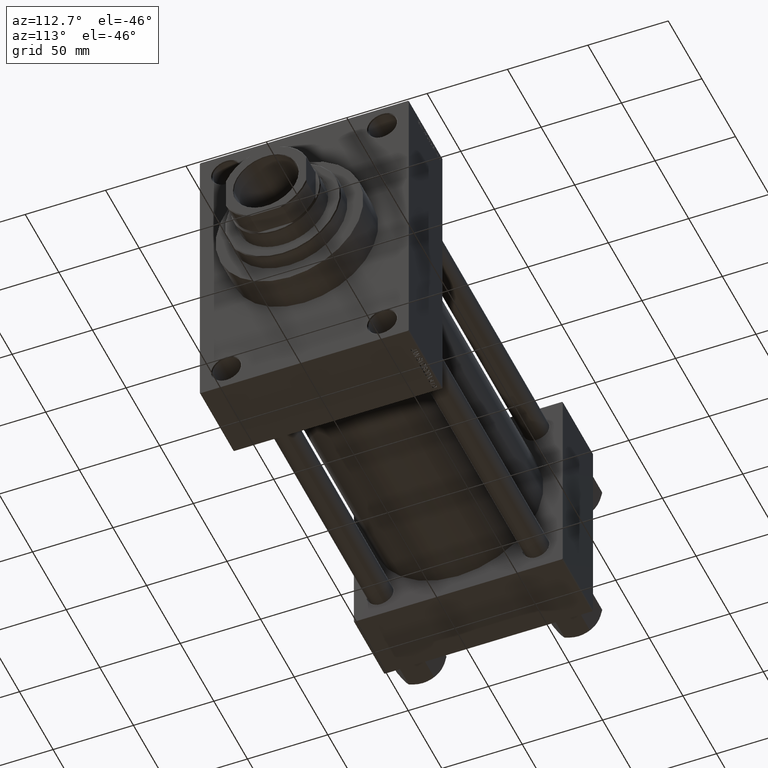
[diagram: clean part render]
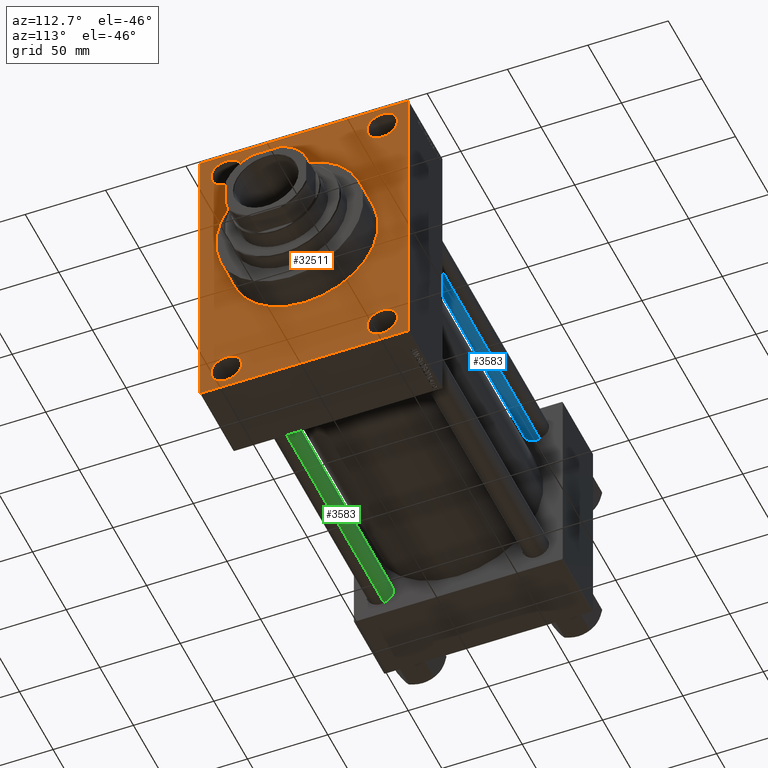
[diagram: same view with three faces highlighted in distinct colors, each labeled with its STEP entity id]
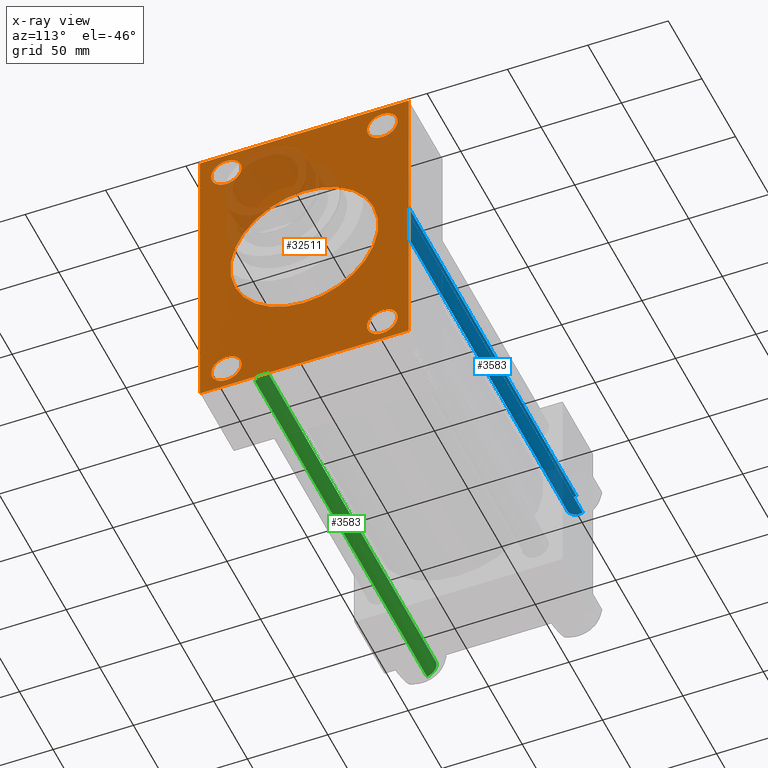
[diagram: x-ray of the same camera — body ghosted, the three highlighted faces saturated]
A machine part, auxiliary view with three faces highlighted in distinct colors.
The next image is the same camera in x-ray (body ghosted, the three faces saturated) — at least one of them is partly hidden behind the body in this view.
Their STEP definitions:

[orange] entity #32511 — the highlighted planar face has unit normal (-1, 0, 0).
#144 = ORIENTED_EDGE ( 'NONE', *, *, #44293, .F. ) ;
#557 = AXIS2_PLACEMENT_3D ( 'NONE', #2115, #13200, #8640 ) ;
#703 = EDGE_LOOP ( 'NONE', ( #9388, #16778, #5173, #28560, #43272, #26817, #36549, #38433 ) ) ;
#956 = DIRECTION ( 'NONE',  ( -1.000000000000000000, 0.000000000000000000, -0.000000000000000000 ) ) ;
#1347 = EDGE_CURVE ( 'NONE', #27374, #19081, #37260, .T. ) ;
#1544 = CARTESIAN_POINT ( 'NONE',  ( 273.9999999999999432, 64.49999999999987210, -95.00000000000001421 ) ) ;
#1857 = CARTESIAN_POINT ( 'NONE',  ( 273.9999999999999432, 64.99999999999997158, 94.49999999999997158 ) ) ;
#2115 = CARTESIAN_POINT ( 'NONE',  ( 273.9999999999999432, 0.000000000000000000, 0.000000000000000000 ) ) ;
#2542 = DIRECTION ( 'NONE',  ( 0.000000000000000000, 0.000000000000000000, 1.000000000000000000 ) ) ;
#2699 = EDGE_CURVE ( 'NONE', #31246, #31264, #8261, .T. ) ;
#3089 = DIRECTION ( 'NONE',  ( 0.000000000000000000, -1.000000000000000000, -1.067522139062650425E-16 ) ) ;
#3331 = CARTESIAN_POINT ( 'NONE',  ( 273.9999999999999432, 64.99999999999998579, -94.49999999999997158 ) ) ;
#3956 = CARTESIAN_POINT ( 'NONE',  ( 273.9999999999999432, 64.99999999999998579, -94.49999999999997158 ) ) ;
#4267 = DIRECTION ( 'NONE',  ( -1.000000000000000000, 0.000000000000000000, -0.000000000000000000 ) ) ;
#5173 = ORIENTED_EDGE ( 'NONE', *, *, #7094, .F. ) ;
#5285 = LINE ( 'NONE', #36157, #24713 ) ;
#5762 = VECTOR ( 'NONE', #24353, 1000.000000000000000 ) ;
#5979 = FACE_OUTER_BOUND ( 'NONE', #703, .T. ) ;
#5999 = DIRECTION ( 'NONE',  ( -1.000000000000000000, 0.000000000000000000, -0.000000000000000000 ) ) ;
#6578 = LINE ( 'NONE', #21520, #29522 ) ;
#6760 = VECTOR ( 'NONE', #44746, 1000.000000000000114 ) ;
#7094 = EDGE_CURVE ( 'NONE', #44386, #34753, #18739, .T. ) ;
#7144 = EDGE_LOOP ( 'NONE', ( #32690, #24344 ) ) ;
#7287 = DIRECTION ( 'NONE',  ( -1.000000000000000000, 0.000000000000000000, -0.000000000000000000 ) ) ;
#7382 = AXIS2_PLACEMENT_3D ( 'NONE', #9535, #39002, #2542 ) ;
#7549 = DIRECTION ( 'NONE',  ( 1.000000000000000000, 0.000000000000000000, 0.000000000000000000 ) ) ;
#8106 = DIRECTION ( 'NONE',  ( 0.000000000000000000, 0.000000000000000000, 1.000000000000000000 ) ) ;
#8261 = LINE ( 'NONE', #12352, #14907 ) ;
#8325 = CARTESIAN_POINT ( 'NONE',  ( 273.9999999999999432, -48.49999999999999289, -71.50000000000005684 ) ) ;
#8512 = VERTEX_POINT ( 'NONE', #22788 ) ;
#8640 = DIRECTION ( 'NONE',  ( -0.000000000000000000, 0.000000000000000000, 1.000000000000000000 ) ) ;
#8875 = FACE_BOUND ( 'NONE', #10533, .T. ) ;
#9388 = ORIENTED_EDGE ( 'NONE', *, *, #2699, .T. ) ;
#9535 = CARTESIAN_POINT ( 'NONE',  ( 273.9999999999999432, -48.50000000000000000, 81.00000000000000000 ) ) ;
#10426 = DIRECTION ( 'NONE',  ( 0.000000000000000000, 0.7071067811865867636, -0.7071067811865081598 ) ) ;
#10497 = AXIS2_PLACEMENT_3D ( 'NONE', #41185, #4267, #8106 ) ;
#10533 = EDGE_LOOP ( 'NONE', ( #144, #39896 ) ) ;
#11745 = EDGE_CURVE ( 'NONE', #24526, #19825, #26002, .T. ) ;
#11886 = EDGE_CURVE ( 'NONE', #36154, #44032, #14263, .T. ) ;
#12352 = CARTESIAN_POINT ( 'NONE',  ( 273.9999999999999432, -65.00000000000001421, 94.99999999999997158 ) ) ;
#12876 = CARTESIAN_POINT ( 'NONE',  ( 273.9999999999999432, -48.50000000000000000, 71.50000000000009948 ) ) ;
#12878 = VERTEX_POINT ( 'NONE', #43209 ) ;
#12972 = AXIS2_PLACEMENT_3D ( 'NONE', #18473, #26200, #14618 ) ;
#13028 = AXIS2_PLACEMENT_3D ( 'NONE', #20099, #31010, #38017 ) ;
#13200 = DIRECTION ( 'NONE',  ( -1.000000000000000000, 0.000000000000000000, -0.000000000000000000 ) ) ;
#13684 = DIRECTION ( 'NONE',  ( 0.000000000000000000, -1.000000000000000000, 0.000000000000000000 ) ) ;
#13700 = CARTESIAN_POINT ( 'NONE',  ( 273.9999999999999432, -48.49999999999999289, -81.00000000000001421 ) ) ;
#13895 = CARTESIAN_POINT ( 'NONE',  ( 273.9999999999999432, -65.00000000000001421, 94.49999999999991473 ) ) ;
#14043 = EDGE_CURVE ( 'NONE', #44032, #32825, #5285, .T. ) ;
#14144 = VERTEX_POINT ( 'NONE', #18501 ) ;
#14263 = LINE ( 'NONE', #21014, #27552 ) ;
#14618 = DIRECTION ( 'NONE',  ( 0.000000000000000000, 0.000000000000000000, 1.000000000000000000 ) ) ;
#14741 = CARTESIAN_POINT ( 'NONE',  ( 273.9999999999999432, 48.50000000000000711, 90.49999999999990052 ) ) ;
#14907 = VECTOR ( 'NONE', #27083, 1000.000000000000000 ) ;
#15183 = VECTOR ( 'NONE', #32512, 1000.000000000000114 ) ;
#15529 = DIRECTION ( 'NONE',  ( 0.000000000000000000, 0.000000000000000000, 1.000000000000000000 ) ) ;
#15991 = CARTESIAN_POINT ( 'NONE',  ( 273.9999999999999432, 48.50000000000000711, -81.00000000000001421 ) ) ;
#16195 = VERTEX_POINT ( 'NONE', #38075 ) ;
#16331 = CARTESIAN_POINT ( 'NONE',  ( 273.9999999999999432, 48.50000000000000711, -81.00000000000001421 ) ) ;
#16382 = EDGE_LOOP ( 'NONE', ( #39865, #25219 ) ) ;
#16392 = AXIS2_PLACEMENT_3D ( 'NONE', #37224, #7287, #40600 ) ;
#16778 = ORIENTED_EDGE ( 'NONE', *, *, #19086, .T. ) ;
#17047 = DIRECTION ( 'NONE',  ( 0.000000000000000000, 0.000000000000000000, 1.000000000000000000 ) ) ;
#17212 = EDGE_CURVE ( 'NONE', #8512, #16195, #34081, .T. ) ;
#17939 = ORIENTED_EDGE ( 'NONE', *, *, #36321, .T. ) ;
#18473 = CARTESIAN_POINT ( 'NONE',  ( 273.9999999999999432, -48.49999999999999289, -81.00000000000001421 ) ) ;
#18501 = CARTESIAN_POINT ( 'NONE',  ( 273.9999999999999432, 48.50000000000000711, 71.50000000000009948 ) ) ;
#18739 = LINE ( 'NONE', #32791, #36677 ) ;
#18975 = CIRCLE ( 'NONE', #42910, 46.00000000000000000 ) ;
#19081 = VERTEX_POINT ( 'NONE', #28792 ) ;
#19086 = EDGE_CURVE ( 'NONE', #31264, #34753, #6578, .T. ) ;
#19242 = EDGE_CURVE ( 'NONE', #14144, #41379, #24116, .T. ) ;
#19376 = DIRECTION ( 'NONE',  ( -1.000000000000000000, 0.000000000000000000, -0.000000000000000000 ) ) ;
#19825 = VERTEX_POINT ( 'NONE', #37123 ) ;
#19930 = AXIS2_PLACEMENT_3D ( 'NONE', #34045, #956, #23373 ) ;
#20099 = CARTESIAN_POINT ( 'NONE',  ( 273.9999999999999432, 0.000000000000000000, 0.000000000000000000 ) ) ;
#20436 = FACE_BOUND ( 'NONE', #38128, .T. ) ;
#20952 = CARTESIAN_POINT ( 'NONE',  ( 273.9999999999999432, -65.00000000000001421, 94.49999999999991473 ) ) ;
#21014 = CARTESIAN_POINT ( 'NONE',  ( 273.9999999999999432, 64.49999999999997158, 94.99999999999997158 ) ) ;
#21520 = CARTESIAN_POINT ( 'NONE',  ( 273.9999999999999432, -64.49999999999995737, -95.00000000000002842 ) ) ;
#22788 = CARTESIAN_POINT ( 'NONE',  ( 273.9999999999999432, 48.50000000000000711, -90.49999999999997158 ) ) ;
#23128 = CIRCLE ( 'NONE', #40894, 9.499999999999953815 ) ;
#23342 = AXIS2_PLACEMENT_3D ( 'NONE', #13700, #5999, #46320 ) ;
#23373 = DIRECTION ( 'NONE',  ( 0.000000000000000000, 0.000000000000000000, 1.000000000000000000 ) ) ;
#24116 = CIRCLE ( 'NONE', #16392, 9.499999999999896971 ) ;
#24302 = FACE_BOUND ( 'NONE', #7144, .T. ) ;
#24344 = ORIENTED_EDGE ( 'NONE', *, *, #40262, .T. ) ;
#24353 = DIRECTION ( 'NONE',  ( 0.000000000000000000, 7.304098846218135653E-17, -1.000000000000000000 ) ) ;
#24355 = CIRCLE ( 'NONE', #7382, 9.499999999999896971 ) ;
#24526 = VERTEX_POINT ( 'NONE', #12876 ) ;
#24533 = CARTESIAN_POINT ( 'NONE',  ( 273.9999999999999432, -64.49999999999995737, -95.00000000000002842 ) ) ;
#24713 = VECTOR ( 'NONE', #13684, 1000.000000000000000 ) ;
#25219 = ORIENTED_EDGE ( 'NONE', *, *, #29950, .T. ) ;
#25414 = DIRECTION ( 'NONE',  ( 0.000000000000000000, 0.000000000000000000, -1.000000000000000000 ) ) ;
#25787 = EDGE_CURVE ( 'NONE', #36154, #43901, #35722, .T. ) ;
#26002 = CIRCLE ( 'NONE', #10497, 9.499999999999896971 ) ;
#26200 = DIRECTION ( 'NONE',  ( -1.000000000000000000, 0.000000000000000000, -0.000000000000000000 ) ) ;
#26817 = ORIENTED_EDGE ( 'NONE', *, *, #11886, .T. ) ;
#27083 = DIRECTION ( 'NONE',  ( 0.000000000000000000, 0.000000000000000000, -1.000000000000000000 ) ) ;
#27374 = VERTEX_POINT ( 'NONE', #8325 ) ;
#27430 = CARTESIAN_POINT ( 'NONE',  ( 273.9999999999999432, 64.49999999999997158, 94.99999999999997158 ) ) ;
#27552 = VECTOR ( 'NONE', #29016, 1000.000000000000114 ) ;
#28560 = ORIENTED_EDGE ( 'NONE', *, *, #37585, .T. ) ;
#28792 = CARTESIAN_POINT ( 'NONE',  ( 273.9999999999999432, -48.49999999999999289, -90.49999999999997158 ) ) ;
#29016 = DIRECTION ( 'NONE',  ( 0.000000000000000000, -0.7071067811865474617, 0.7071067811865474617 ) ) ;
#29322 = LINE ( 'NONE', #3956, #6760 ) ;
#29522 = VECTOR ( 'NONE', #10426, 1000.000000000000000 ) ;
#29950 = EDGE_CURVE ( 'NONE', #19825, #24526, #24355, .T. ) ;
#30752 = CARTESIAN_POINT ( 'NONE',  ( 273.9999999999999432, 5.633375276077824704E-15, -46.00000000000000000 ) ) ;
#30756 = ORIENTED_EDGE ( 'NONE', *, *, #46414, .T. ) ;
#30833 = EDGE_CURVE ( 'NONE', #38463, #12878, #18975, .T. ) ;
#31005 = AXIS2_PLACEMENT_3D ( 'NONE', #15991, #19376, #15529 ) ;
#31010 = DIRECTION ( 'NONE',  ( 1.000000000000000000, 0.000000000000000000, 0.000000000000000000 ) ) ;
#31246 = VERTEX_POINT ( 'NONE', #20952 ) ;
#31264 = VERTEX_POINT ( 'NONE', #38613 ) ;
#31572 = CIRCLE ( 'NONE', #13028, 46.00000000000000000 ) ;
#32037 = DIRECTION ( 'NONE',  ( -1.000000000000000000, 0.000000000000000000, -0.000000000000000000 ) ) ;
#32162 = ORIENTED_EDGE ( 'NONE', *, *, #1347, .T. ) ;
#32272 = LINE ( 'NONE', #13895, #15183 ) ;
#32511 = ADVANCED_FACE ( 'NONE', ( #35204, #41952, #20436, #24302, #8875, #5979 ), #46062, .F. ) ;
#32512 = DIRECTION ( 'NONE',  ( -0.000000000000000000, -0.7071067811864985009, -0.7071067811865965336 ) ) ;
#32690 = ORIENTED_EDGE ( 'NONE', *, *, #19242, .T. ) ;
#32791 = CARTESIAN_POINT ( 'NONE',  ( 273.9999999999999432, 64.99999999999998579, -95.00000000000001421 ) ) ;
#32825 = VERTEX_POINT ( 'NONE', #37526 ) ;
#34045 = CARTESIAN_POINT ( 'NONE',  ( 273.9999999999999432, 48.50000000000000711, 81.00000000000000000 ) ) ;
#34081 = CIRCLE ( 'NONE', #31005, 9.499999999999953815 ) ;
#34753 = VERTEX_POINT ( 'NONE', #24533 ) ;
#35204 = FACE_BOUND ( 'NONE', #16382, .T. ) ;
#35290 = EDGE_LOOP ( 'NONE', ( #17939, #32162 ) ) ;
#35484 = CARTESIAN_POINT ( 'NONE',  ( 273.9999999999999432, 64.99999999999997158, 94.99999999999997158 ) ) ;
#35722 = LINE ( 'NONE', #35484, #5762 ) ;
#36154 = VERTEX_POINT ( 'NONE', #1857 ) ;
#36157 = CARTESIAN_POINT ( 'NONE',  ( 273.9999999999999432, 64.99999999999997158, 94.99999999999997158 ) ) ;
#36220 = EDGE_CURVE ( 'NONE', #32825, #31246, #32272, .T. ) ;
#36321 = EDGE_CURVE ( 'NONE', #19081, #27374, #37588, .T. ) ;
#36549 = ORIENTED_EDGE ( 'NONE', *, *, #14043, .T. ) ;
#36677 = VECTOR ( 'NONE', #3089, 1000.000000000000000 ) ;
#37123 = CARTESIAN_POINT ( 'NONE',  ( 273.9999999999999432, -48.50000000000000000, 90.49999999999990052 ) ) ;
#37224 = CARTESIAN_POINT ( 'NONE',  ( 273.9999999999999432, 48.50000000000000711, 81.00000000000000000 ) ) ;
#37260 = CIRCLE ( 'NONE', #23342, 9.499999999999953815 ) ;
#37266 = ORIENTED_EDGE ( 'NONE', *, *, #17212, .T. ) ;
#37526 = CARTESIAN_POINT ( 'NONE',  ( 273.9999999999999432, -64.50000000000002842, 94.99999999999997158 ) ) ;
#37585 = EDGE_CURVE ( 'NONE', #44386, #43901, #29322, .T. ) ;
#37588 = CIRCLE ( 'NONE', #12972, 9.499999999999953815 ) ;
#38017 = DIRECTION ( 'NONE',  ( 0.000000000000000000, 0.000000000000000000, -1.000000000000000000 ) ) ;
#38075 = CARTESIAN_POINT ( 'NONE',  ( 273.9999999999999432, 48.50000000000000711, -71.50000000000005684 ) ) ;
#38128 = EDGE_LOOP ( 'NONE', ( #37266, #30756 ) ) ;
#38433 = ORIENTED_EDGE ( 'NONE', *, *, #36220, .T. ) ;
#38463 = VERTEX_POINT ( 'NONE', #30752 ) ;
#38613 = CARTESIAN_POINT ( 'NONE',  ( 273.9999999999999432, -65.00000000000001421, -94.50000000000002842 ) ) ;
#39002 = DIRECTION ( 'NONE',  ( -1.000000000000000000, 0.000000000000000000, -0.000000000000000000 ) ) ;
#39865 = ORIENTED_EDGE ( 'NONE', *, *, #11745, .T. ) ;
#39896 = ORIENTED_EDGE ( 'NONE', *, *, #30833, .F. ) ;
#40262 = EDGE_CURVE ( 'NONE', #41379, #14144, #40770, .T. ) ;
#40600 = DIRECTION ( 'NONE',  ( 0.000000000000000000, 0.000000000000000000, 1.000000000000000000 ) ) ;
#40770 = CIRCLE ( 'NONE', #19930, 9.499999999999896971 ) ;
#40894 = AXIS2_PLACEMENT_3D ( 'NONE', #16331, #32037, #17047 ) ;
#41185 = CARTESIAN_POINT ( 'NONE',  ( 273.9999999999999432, -48.50000000000000000, 81.00000000000000000 ) ) ;
#41379 = VERTEX_POINT ( 'NONE', #14741 ) ;
#41952 = FACE_BOUND ( 'NONE', #35290, .T. ) ;
#42910 = AXIS2_PLACEMENT_3D ( 'NONE', #44494, #7549, #25414 ) ;
#43209 = CARTESIAN_POINT ( 'NONE',  ( 273.9999999999999432, 0.000000000000000000, 46.00000000000000000 ) ) ;
#43272 = ORIENTED_EDGE ( 'NONE', *, *, #25787, .F. ) ;
#43901 = VERTEX_POINT ( 'NONE', #3331 ) ;
#44032 = VERTEX_POINT ( 'NONE', #27430 ) ;
#44293 = EDGE_CURVE ( 'NONE', #12878, #38463, #31572, .T. ) ;
#44386 = VERTEX_POINT ( 'NONE', #1544 ) ;
#44494 = CARTESIAN_POINT ( 'NONE',  ( 273.9999999999999432, 0.000000000000000000, 0.000000000000000000 ) ) ;
#44746 = DIRECTION ( 'NONE',  ( -0.000000000000000000, 0.7071067811865965336, 0.7071067811864985009 ) ) ;
#46062 = PLANE ( 'NONE',  #557 ) ;
#46320 = DIRECTION ( 'NONE',  ( 0.000000000000000000, 0.000000000000000000, 1.000000000000000000 ) ) ;
#46414 = EDGE_CURVE ( 'NONE', #16195, #8512, #23128, .T. ) ;

[blue] entity #3583 — the highlighted cylindrical surface (edge-blend (fillet) strip) has radius 8 mm, axis along (-1, -0, 0).
#403 = DIRECTION ( 'NONE',  ( -0.000000000000000000, -0.000000000000000000, -1.000000000000000000 ) ) ;
#2374 = ORIENTED_EDGE ( 'NONE', *, *, #3716, .T. ) ;
#2543 = CARTESIAN_POINT ( 'NONE',  ( -8.000000000000000000, 0.000000000000000000, 256.5000000000000000 ) ) ;
#3583 = ADVANCED_FACE ( 'NONE', ( #11262 ), #29635, .T. ) ;
#3716 = EDGE_CURVE ( 'NONE', #6437, #39131, #15832, .T. ) ;
#5727 = DIRECTION ( 'NONE',  ( -0.000000000000000000, -0.000000000000000000, -1.000000000000000000 ) ) ;
#6437 = VERTEX_POINT ( 'NONE', #2543 ) ;
#6552 = ORIENTED_EDGE ( 'NONE', *, *, #27196, .T. ) ;
#7537 = AXIS2_PLACEMENT_3D ( 'NONE', #32640, #18123, #44215 ) ;
#8771 = VECTOR ( 'NONE', #45306, 1000.000000000000000 ) ;
#10519 = EDGE_CURVE ( 'NONE', #45514, #38333, #27932, .T. ) ;
#10792 = DIRECTION ( 'NONE',  ( -1.000000000000000000, 0.000000000000000000, 0.000000000000000000 ) ) ;
#11262 = FACE_OUTER_BOUND ( 'NONE', #23670, .T. ) ;
#11959 = CIRCLE ( 'NONE', #28128, 8.000000000000000000 ) ;
#15832 = LINE ( 'NONE', #30586, #8771 ) ;
#16092 = DIRECTION ( 'NONE',  ( 1.000000000000000000, 0.000000000000000000, 0.000000000000000000 ) ) ;
#17238 = AXIS2_PLACEMENT_3D ( 'NONE', #29159, #403, #10792 ) ;
#18123 = DIRECTION ( 'NONE',  ( 0.000000000000000000, 0.000000000000000000, -1.000000000000000000 ) ) ;
#23670 = EDGE_LOOP ( 'NONE', ( #45606, #42936, #2374, #6552 ) ) ;
#23716 = CIRCLE ( 'NONE', #7537, 8.000000000000000000 ) ;
#27196 = EDGE_CURVE ( 'NONE', #39131, #38333, #11959, .T. ) ;
#27518 = VECTOR ( 'NONE', #5727, 1000.000000000000000 ) ;
#27932 = LINE ( 'NONE', #46286, #27518 ) ;
#28128 = AXIS2_PLACEMENT_3D ( 'NONE', #42411, #42169, #16092 ) ;
#29159 = CARTESIAN_POINT ( 'NONE',  ( 0.000000000000000000, 0.000000000000000000, 257.0000000000000000 ) ) ;
#29561 = CARTESIAN_POINT ( 'NONE',  ( 8.000000000000000000, 9.797174393178825657E-16, 0.5000000000000004441 ) ) ;
#29635 = CYLINDRICAL_SURFACE ( 'NONE', #17238, 8.000000000000000000 ) ;
#30586 = CARTESIAN_POINT ( 'NONE',  ( -8.000000000000000000, 0.000000000000000000, 257.0000000000000000 ) ) ;
#32640 = CARTESIAN_POINT ( 'NONE',  ( 0.000000000000000000, 0.000000000000000000, 256.5000000000000000 ) ) ;
#32925 = CARTESIAN_POINT ( 'NONE',  ( 8.000000000000000000, 9.797174393178825657E-16, 256.5000000000000000 ) ) ;
#37753 = EDGE_CURVE ( 'NONE', #45514, #6437, #23716, .T. ) ;
#38333 = VERTEX_POINT ( 'NONE', #29561 ) ;
#39131 = VERTEX_POINT ( 'NONE', #44237 ) ;
#42169 = DIRECTION ( 'NONE',  ( -0.000000000000000000, -0.000000000000000000, 1.000000000000000000 ) ) ;
#42411 = CARTESIAN_POINT ( 'NONE',  ( 0.000000000000000000, 0.000000000000000000, 0.5000000000000004441 ) ) ;
#42936 = ORIENTED_EDGE ( 'NONE', *, *, #37753, .T. ) ;
#44215 = DIRECTION ( 'NONE',  ( 1.000000000000000000, 0.000000000000000000, 0.000000000000000000 ) ) ;
#44237 = CARTESIAN_POINT ( 'NONE',  ( -8.000000000000000000, 0.000000000000000000, 0.5000000000000004441 ) ) ;
#45306 = DIRECTION ( 'NONE',  ( -0.000000000000000000, -0.000000000000000000, -1.000000000000000000 ) ) ;
#45514 = VERTEX_POINT ( 'NONE', #32925 ) ;
#45606 = ORIENTED_EDGE ( 'NONE', *, *, #10519, .F. ) ;
#46286 = CARTESIAN_POINT ( 'NONE',  ( 8.000000000000000000, 9.797174393178825657E-16, 257.0000000000000000 ) ) ;

[green] entity #3583 — the highlighted cylindrical surface (edge-blend (fillet) strip) has radius 8 mm, axis along (-1, 0, 0).
#403 = DIRECTION ( 'NONE',  ( -0.000000000000000000, -0.000000000000000000, -1.000000000000000000 ) ) ;
#2374 = ORIENTED_EDGE ( 'NONE', *, *, #3716, .T. ) ;
#2543 = CARTESIAN_POINT ( 'NONE',  ( -8.000000000000000000, 0.000000000000000000, 256.5000000000000000 ) ) ;
#3583 = ADVANCED_FACE ( 'NONE', ( #11262 ), #29635, .T. ) ;
#3716 = EDGE_CURVE ( 'NONE', #6437, #39131, #15832, .T. ) ;
#5727 = DIRECTION ( 'NONE',  ( -0.000000000000000000, -0.000000000000000000, -1.000000000000000000 ) ) ;
#6437 = VERTEX_POINT ( 'NONE', #2543 ) ;
#6552 = ORIENTED_EDGE ( 'NONE', *, *, #27196, .T. ) ;
#7537 = AXIS2_PLACEMENT_3D ( 'NONE', #32640, #18123, #44215 ) ;
#8771 = VECTOR ( 'NONE', #45306, 1000.000000000000000 ) ;
#10519 = EDGE_CURVE ( 'NONE', #45514, #38333, #27932, .T. ) ;
#10792 = DIRECTION ( 'NONE',  ( -1.000000000000000000, 0.000000000000000000, 0.000000000000000000 ) ) ;
#11262 = FACE_OUTER_BOUND ( 'NONE', #23670, .T. ) ;
#11959 = CIRCLE ( 'NONE', #28128, 8.000000000000000000 ) ;
#15832 = LINE ( 'NONE', #30586, #8771 ) ;
#16092 = DIRECTION ( 'NONE',  ( 1.000000000000000000, 0.000000000000000000, 0.000000000000000000 ) ) ;
#17238 = AXIS2_PLACEMENT_3D ( 'NONE', #29159, #403, #10792 ) ;
#18123 = DIRECTION ( 'NONE',  ( 0.000000000000000000, 0.000000000000000000, -1.000000000000000000 ) ) ;
#23670 = EDGE_LOOP ( 'NONE', ( #45606, #42936, #2374, #6552 ) ) ;
#23716 = CIRCLE ( 'NONE', #7537, 8.000000000000000000 ) ;
#27196 = EDGE_CURVE ( 'NONE', #39131, #38333, #11959, .T. ) ;
#27518 = VECTOR ( 'NONE', #5727, 1000.000000000000000 ) ;
#27932 = LINE ( 'NONE', #46286, #27518 ) ;
#28128 = AXIS2_PLACEMENT_3D ( 'NONE', #42411, #42169, #16092 ) ;
#29159 = CARTESIAN_POINT ( 'NONE',  ( 0.000000000000000000, 0.000000000000000000, 257.0000000000000000 ) ) ;
#29561 = CARTESIAN_POINT ( 'NONE',  ( 8.000000000000000000, 9.797174393178825657E-16, 0.5000000000000004441 ) ) ;
#29635 = CYLINDRICAL_SURFACE ( 'NONE', #17238, 8.000000000000000000 ) ;
#30586 = CARTESIAN_POINT ( 'NONE',  ( -8.000000000000000000, 0.000000000000000000, 257.0000000000000000 ) ) ;
#32640 = CARTESIAN_POINT ( 'NONE',  ( 0.000000000000000000, 0.000000000000000000, 256.5000000000000000 ) ) ;
#32925 = CARTESIAN_POINT ( 'NONE',  ( 8.000000000000000000, 9.797174393178825657E-16, 256.5000000000000000 ) ) ;
#37753 = EDGE_CURVE ( 'NONE', #45514, #6437, #23716, .T. ) ;
#38333 = VERTEX_POINT ( 'NONE', #29561 ) ;
#39131 = VERTEX_POINT ( 'NONE', #44237 ) ;
#42169 = DIRECTION ( 'NONE',  ( -0.000000000000000000, -0.000000000000000000, 1.000000000000000000 ) ) ;
#42411 = CARTESIAN_POINT ( 'NONE',  ( 0.000000000000000000, 0.000000000000000000, 0.5000000000000004441 ) ) ;
#42936 = ORIENTED_EDGE ( 'NONE', *, *, #37753, .T. ) ;
#44215 = DIRECTION ( 'NONE',  ( 1.000000000000000000, 0.000000000000000000, 0.000000000000000000 ) ) ;
#44237 = CARTESIAN_POINT ( 'NONE',  ( -8.000000000000000000, 0.000000000000000000, 0.5000000000000004441 ) ) ;
#45306 = DIRECTION ( 'NONE',  ( -0.000000000000000000, -0.000000000000000000, -1.000000000000000000 ) ) ;
#45514 = VERTEX_POINT ( 'NONE', #32925 ) ;
#45606 = ORIENTED_EDGE ( 'NONE', *, *, #10519, .F. ) ;
#46286 = CARTESIAN_POINT ( 'NONE',  ( 8.000000000000000000, 9.797174393178825657E-16, 257.0000000000000000 ) ) ;